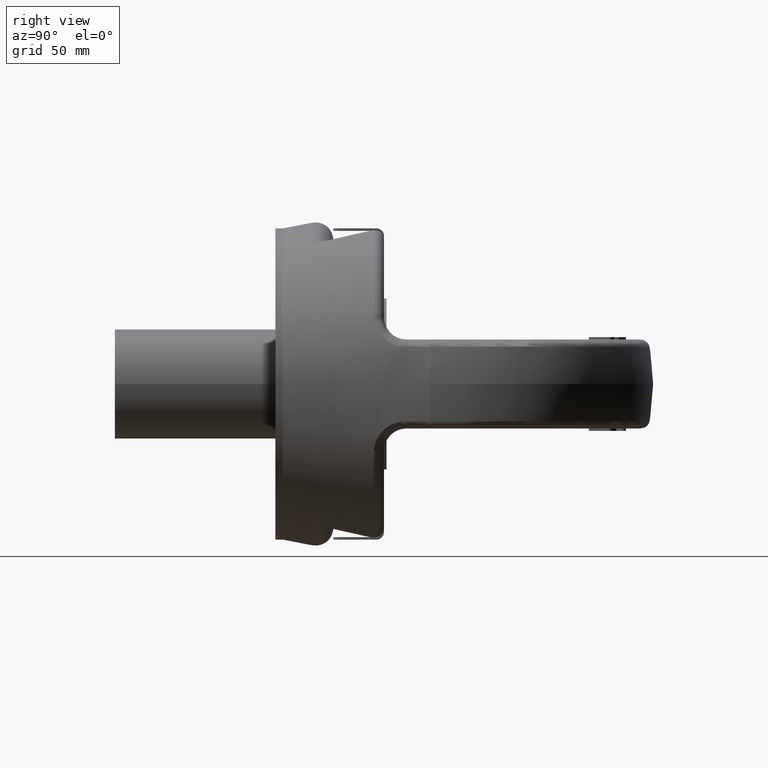
[diagram: clean part render]
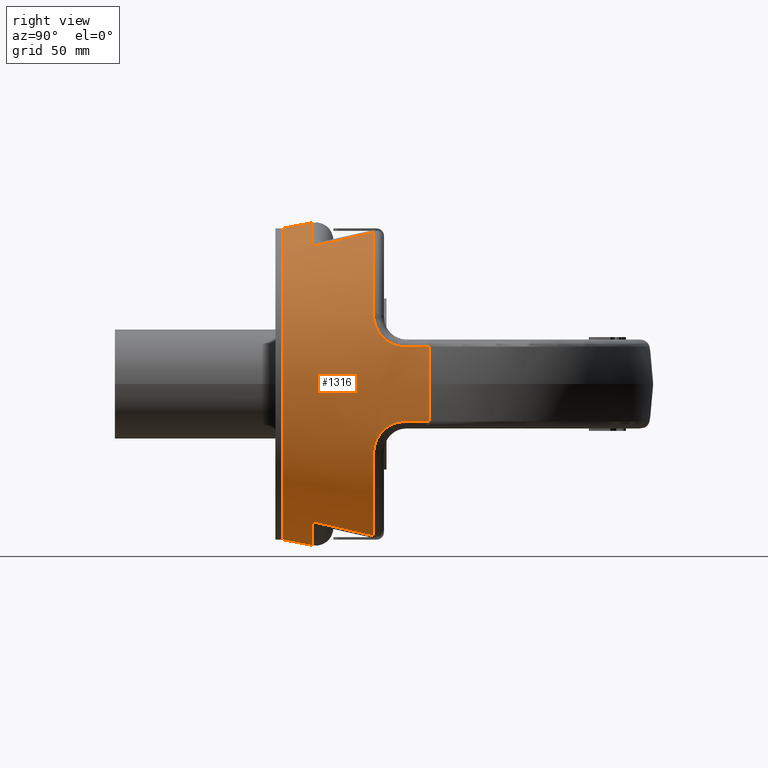
[diagram: same view with one face highlighted and labeled with its STEP entity id]
A machine part, right view. The second image highlights one B-rep face of the part: STEP entity #1316.
In plain terms, the highlighted conical surface has half-angle 11.036 deg.
Its self-contained STEP definition (entity closure, byte-faithful):
#1090=CONICAL_SURFACE('',#5143,62.4149258715599,11.0355728840345);
#1316=ADVANCED_FACE('',(#1767,#1768),#1090,.T.);
#1676=CIRCLE('',#5134,74.5946481153566);
#1677=CIRCLE('',#5135,70.159531379421);
#1678=CIRCLE('',#5136,65.3250431258165);
#1679=CIRCLE('',#5137,70.159531379421);
#1680=CIRCLE('',#5138,74.5946481153566);
#1681=CIRCLE('',#5139,70.159531379421);
#1682=CIRCLE('',#5140,65.3250431258165);
#1683=CIRCLE('',#5141,70.159531379421);
#1684=CIRCLE('',#5142,63.0000000000001);
#1767=FACE_BOUND('',#1828,.T.);
#1768=FACE_BOUND('',#1829,.T.);
#1828=EDGE_LOOP('',(#2810,#2811,#2812,#2813,#2814,#2815,#2816,#2817,#2818,
#2819,#2820,#2821,#2822,#2823,#2824,#2825,#2826,#2827,#2828,#2829));
#1829=EDGE_LOOP('',(#2830));
#2810=ORIENTED_EDGE('',*,*,#4372,.T.);
#2811=ORIENTED_EDGE('',*,*,#4373,.T.);
#2812=ORIENTED_EDGE('',*,*,#4374,.T.);
#2813=ORIENTED_EDGE('',*,*,#4375,.T.);
#2814=ORIENTED_EDGE('',*,*,#4376,.T.);
#2815=ORIENTED_EDGE('',*,*,#4377,.T.);
#2816=ORIENTED_EDGE('',*,*,#4378,.T.);
#2817=ORIENTED_EDGE('',*,*,#4379,.T.);
#2818=ORIENTED_EDGE('',*,*,#4380,.T.);
#2819=ORIENTED_EDGE('',*,*,#4381,.T.);
#2820=ORIENTED_EDGE('',*,*,#4382,.T.);
#2821=ORIENTED_EDGE('',*,*,#4383,.T.);
#2822=ORIENTED_EDGE('',*,*,#4384,.T.);
#2823=ORIENTED_EDGE('',*,*,#4385,.T.);
#2824=ORIENTED_EDGE('',*,*,#4386,.T.);
#2825=ORIENTED_EDGE('',*,*,#4387,.T.);
#2826=ORIENTED_EDGE('',*,*,#4388,.T.);
#2827=ORIENTED_EDGE('',*,*,#4389,.T.);
#2828=ORIENTED_EDGE('',*,*,#4390,.T.);
#2829=ORIENTED_EDGE('',*,*,#4391,.T.);
#2830=ORIENTED_EDGE('',*,*,#4392,.F.);
#3982=VERTEX_POINT('',#6756);
#3983=VERTEX_POINT('',#6757);
#3984=VERTEX_POINT('',#6765);
#3985=VERTEX_POINT('',#6772);
#3986=VERTEX_POINT('',#6774);
#3987=VERTEX_POINT('',#6782);
#3988=VERTEX_POINT('',#6784);
#3989=VERTEX_POINT('',#6792);
#3990=VERTEX_POINT('',#6794);
#3991=VERTEX_POINT('',#6801);
#3992=VERTEX_POINT('',#6809);
#3993=VERTEX_POINT('',#6811);
#3994=VERTEX_POINT('',#6819);
#3995=VERTEX_POINT('',#6826);
#3996=VERTEX_POINT('',#6828);
#3997=VERTEX_POINT('',#6836);
#3998=VERTEX_POINT('',#6838);
#3999=VERTEX_POINT('',#6846);
#4000=VERTEX_POINT('',#6848);
#4001=VERTEX_POINT('',#6855);
#4002=VERTEX_POINT('',#6864);
#4372=EDGE_CURVE('',#3982,#3983,#1676,.T.);
#4373=EDGE_CURVE('',#3983,#3984,#4887,.T.);
#4374=EDGE_CURVE('',#3984,#3985,#4888,.T.);
#4375=EDGE_CURVE('',#3985,#3986,#1677,.T.);
#4376=EDGE_CURVE('',#3986,#3987,#4889,.T.);
#4377=EDGE_CURVE('',#3987,#3988,#1678,.T.);
#4378=EDGE_CURVE('',#3988,#3989,#4890,.T.);
#4379=EDGE_CURVE('',#3989,#3990,#1679,.T.);
#4380=EDGE_CURVE('',#3990,#3991,#4891,.T.);
#4381=EDGE_CURVE('',#3991,#3992,#4892,.T.);
#4382=EDGE_CURVE('',#3992,#3993,#1680,.T.);
#4383=EDGE_CURVE('',#3993,#3994,#4893,.T.);
#4384=EDGE_CURVE('',#3994,#3995,#4894,.T.);
#4385=EDGE_CURVE('',#3995,#3996,#1681,.T.);
#4386=EDGE_CURVE('',#3996,#3997,#4895,.T.);
#4387=EDGE_CURVE('',#3997,#3998,#1682,.T.);
#4388=EDGE_CURVE('',#3998,#3999,#4896,.T.);
#4389=EDGE_CURVE('',#3999,#4000,#1683,.T.);
#4390=EDGE_CURVE('',#4000,#4001,#4897,.T.);
#4391=EDGE_CURVE('',#4001,#3982,#4898,.T.);
#4392=EDGE_CURVE('',#4002,#4002,#1684,.T.);
#4887=B_SPLINE_CURVE_WITH_KNOTS('',3,(#6758,#6759,#6760,#6761,#6762,#6763,
#6764),.UNSPECIFIED.,.F.,.F.,(4,3,4),(0.,0.696218903154274,1.),
 .UNSPECIFIED.);
#4888=B_SPLINE_CURVE_WITH_KNOTS('',3,(#6766,#6767,#6768,#6769,#6770,#6771),
 .UNSPECIFIED.,.F.,.F.,(4,2,4),(0.,0.5,1.),.UNSPECIFIED.);
#4889=B_SPLINE_CURVE_WITH_KNOTS('',3,(#6775,#6776,#6777,#6778,#6779,#6780,
#6781),.UNSPECIFIED.,.F.,.F.,(4,3,4),(0.,0.277118209499198,1.),
 .UNSPECIFIED.);
#4890=B_SPLINE_CURVE_WITH_KNOTS('',3,(#6785,#6786,#6787,#6788,#6789,#6790,
#6791),.UNSPECIFIED.,.F.,.F.,(4,3,4),(0.,0.722881790500798,1.),
 .UNSPECIFIED.);
#4891=B_SPLINE_CURVE_WITH_KNOTS('',3,(#6795,#6796,#6797,#6798,#6799,#6800),
 .UNSPECIFIED.,.F.,.F.,(4,2,4),(0.,0.5,1.),.UNSPECIFIED.);
#4892=B_SPLINE_CURVE_WITH_KNOTS('',3,(#6802,#6803,#6804,#6805,#6806,#6807,
#6808),.UNSPECIFIED.,.F.,.F.,(4,3,4),(0.,0.696218903588107,1.),
 .UNSPECIFIED.);
#4893=B_SPLINE_CURVE_WITH_KNOTS('',3,(#6812,#6813,#6814,#6815,#6816,#6817,
#6818),.UNSPECIFIED.,.F.,.F.,(4,3,4),(0.,0.696218903154274,1.),
 .UNSPECIFIED.);
#4894=B_SPLINE_CURVE_WITH_KNOTS('',3,(#6820,#6821,#6822,#6823,#6824,#6825),
 .UNSPECIFIED.,.F.,.F.,(4,2,4),(0.,0.5,1.),.UNSPECIFIED.);
#4895=B_SPLINE_CURVE_WITH_KNOTS('',3,(#6829,#6830,#6831,#6832,#6833,#6834,
#6835),.UNSPECIFIED.,.F.,.F.,(4,3,4),(0.,0.277118209499198,1.),
 .UNSPECIFIED.);
#4896=B_SPLINE_CURVE_WITH_KNOTS('',3,(#6839,#6840,#6841,#6842,#6843,#6844,
#6845),.UNSPECIFIED.,.F.,.F.,(4,3,4),(0.,0.722881790500798,1.),
 .UNSPECIFIED.);
#4897=B_SPLINE_CURVE_WITH_KNOTS('',3,(#6849,#6850,#6851,#6852,#6853,#6854),
 .UNSPECIFIED.,.F.,.F.,(4,2,4),(0.,0.5,1.),.UNSPECIFIED.);
#4898=B_SPLINE_CURVE_WITH_KNOTS('',3,(#6856,#6857,#6858,#6859,#6860,#6861,
#6862),.UNSPECIFIED.,.F.,.F.,(4,3,4),(0.,0.696218903588107,1.),
 .UNSPECIFIED.);
#5134=AXIS2_PLACEMENT_3D('',#6755,#5481,#5482);
#5135=AXIS2_PLACEMENT_3D('',#6773,#5483,#5484);
#5136=AXIS2_PLACEMENT_3D('',#6783,#5485,#5486);
#5137=AXIS2_PLACEMENT_3D('',#6793,#5487,#5488);
#5138=AXIS2_PLACEMENT_3D('',#6810,#5489,#5490);
#5139=AXIS2_PLACEMENT_3D('',#6827,#5491,#5492);
#5140=AXIS2_PLACEMENT_3D('',#6837,#5493,#5494);
#5141=AXIS2_PLACEMENT_3D('',#6847,#5495,#5496);
#5142=AXIS2_PLACEMENT_3D('',#6863,#5497,#5498);
#5143=AXIS2_PLACEMENT_3D('',#6865,#5499,#5500);
#5481=DIRECTION('',(-8.32702619952307E-16,-1.,0.));
#5482=DIRECTION('',(1.,-8.37192033382736E-16,0.));
#5483=DIRECTION('',(-1.25106507477956E-15,-1.,-2.93113378658471E-30));
#5484=DIRECTION('',(-1.,1.28572154028459E-15,-2.34291072916505E-15));
#5485=DIRECTION('',(-1.49384152936647E-16,-1.,-3.49993734682502E-31));
#5486=DIRECTION('',(-1.,1.59331557360235E-16,-2.34291072916505E-15));
#5487=DIRECTION('',(1.25106507477956E-15,-1.,2.93113378658471E-30));
#5488=DIRECTION('',(-1.,-1.28572154028459E-15,-2.34291072916505E-15));
#5489=DIRECTION('',(-8.32702619952307E-16,-1.,0.));
#5490=DIRECTION('',(1.,-8.37192033382736E-16,0.));
#5491=DIRECTION('',(1.25106507477956E-15,-1.,0.));
#5492=DIRECTION('',(1.,1.28572154028459E-15,0.));
#5493=DIRECTION('',(1.49384152936647E-16,-1.,0.));
#5494=DIRECTION('',(1.,1.59331557360235E-16,0.));
#5495=DIRECTION('',(-1.25106507477956E-15,-1.,0.));
#5496=DIRECTION('',(1.,-1.28572154028459E-15,0.));
#5497=DIRECTION('',(0.,-1.,0.));
#5498=DIRECTION('',(0.,0.,1.));
#5499=DIRECTION('',(8.32702619952307E-16,1.,0.));
#5500=DIRECTION('',(-1.,6.4688350520035E-16,0.));
#6755=CARTESIAN_POINT('',(-7.53993899390729E-14,62.4522004225333,0.));
#6756=CARTESIAN_POINT('',(-73.0470218649802,62.4522004225334,15.1160220994476));
#6757=CARTESIAN_POINT('',(-73.04702186498,62.4522004225333,-15.1160220994477));
#6758=CARTESIAN_POINT('',(-73.04702186498,62.4522004225333,-15.1160220994477));
#6759=CARTESIAN_POINT('',(-72.5773323571171,60.0986137057358,-15.1206471195753));
#6760=CARTESIAN_POINT('',(-72.1074288123977,57.7450698653309,-15.1253616441647));
#6761=CARTESIAN_POINT('',(-71.6372972063869,55.3915717878939,-15.1301710748141));
#6762=CARTESIAN_POINT('',(-71.4321647474894,54.3646702959232,-15.1322695730269));
#6763=CARTESIAN_POINT('',(-71.2269888534885,53.3377775162468,-15.1343861452101));
#6764=CARTESIAN_POINT('',(-71.0217682856431,52.3108937042253,-15.136521266048));
#6765=CARTESIAN_POINT('',(-71.0217682856431,52.3108937042253,-15.136521266048));
#6766=CARTESIAN_POINT('',(-71.0217682856431,52.3108937042253,-15.136521266048));
#6767=CARTESIAN_POINT('',(-70.3113527915392,48.7561127270364,-15.1439124497922));
#6768=CARTESIAN_POINT('',(-69.3287708213186,45.4283966235626,-16.7696587750072));
#6769=CARTESIAN_POINT('',(-66.9693945275278,40.8814377147048,-21.8444098292553));
#6770=CARTESIAN_POINT('',(-65.6049138920833,39.7108937042253,-25.127990593447));
#6771=CARTESIAN_POINT('',(-64.1403640092698,39.7108937042253,-28.4319107366761));
#6772=CARTESIAN_POINT('',(-64.1403640092698,39.7108937042253,-28.4319107366761));
#6773=CARTESIAN_POINT('',(9.43361356245471E-14,39.7108937042252,2.21021144302721E-28));
#6774=CARTESIAN_POINT('',(-33.8328326084271,39.7108937042252,-61.4629911497163));
#6775=CARTESIAN_POINT('',(-33.8328326084271,39.7108937042252,-61.4629911497163));
#6776=CARTESIAN_POINT('',(-33.8569733561831,37.4191727761368,-60.9395215762751));
#6777=CARTESIAN_POINT('',(-33.8816220479038,35.1279132817464,-60.414050238273));
#6778=CARTESIAN_POINT('',(-33.9068116186157,32.8371630093534,-59.8863982153276));
#6779=CARTESIAN_POINT('',(-33.9725201495149,26.8616012668625,-58.509985744855));
#6780=CARTESIAN_POINT('',(-34.0418989200798,20.8894462217521,-57.1188192283477));
#6781=CARTESIAN_POINT('',(-34.1156276807715,14.9217874084505,-55.7089329222591));
#6782=CARTESIAN_POINT('',(-34.1156276807715,14.9217874084505,-55.7089329222591));
#6783=CARTESIAN_POINT('',(1.14978089383315E-13,14.9217874084505,2.69383399235067E-28));
#6784=CARTESIAN_POINT('',(34.1156276807717,14.9217874084505,-55.7089329222591));
#6785=CARTESIAN_POINT('',(34.1156276807717,14.9217874084505,-55.7089329222591));
#6786=CARTESIAN_POINT('',(34.04189892008,20.8894462217521,-57.1188192283476));
#6787=CARTESIAN_POINT('',(33.9725201495151,26.8616012668625,-58.509985744855));
#6788=CARTESIAN_POINT('',(33.906811618616,32.8371630093533,-59.8863982153276));
#6789=CARTESIAN_POINT('',(33.8816220479041,35.1279132817464,-60.414050238273));
#6790=CARTESIAN_POINT('',(33.8569733561834,37.4191727761368,-60.9395215762751));
#6791=CARTESIAN_POINT('',(33.8328326084273,39.7108937042253,-61.4629911497163));
#6792=CARTESIAN_POINT('',(33.8328326084273,39.7108937042253,-61.4629911497163));
#6793=CARTESIAN_POINT('',(9.43361356245472E-14,39.7108937042252,2.21021144302721E-28));
#6794=CARTESIAN_POINT('',(64.1403640092701,39.7108937042253,-28.4319107366758));
#6795=CARTESIAN_POINT('',(64.1403640092701,39.7108937042253,-28.4319107366758));
#6796=CARTESIAN_POINT('',(65.6037690047869,39.7108937042253,-25.1305733775811));
#6797=CARTESIAN_POINT('',(66.9848092787425,40.9082737412596,-21.8104018528848));
#6798=CARTESIAN_POINT('',(69.3206138894666,45.4155567046367,-16.7880586562449));
#6799=CARTESIAN_POINT('',(70.3121264693099,48.7599840601422,-15.1439044004255));
#6800=CARTESIAN_POINT('',(71.0217682856433,52.3108937042253,-15.1365212660477));
#6801=CARTESIAN_POINT('',(71.0217682856433,52.3108937042253,-15.1365212660477));
#6802=CARTESIAN_POINT('',(71.0217682856433,52.3108937042253,-15.1365212660477));
#6803=CARTESIAN_POINT('',(71.4921018238644,54.6643512631867,-15.1316279020503));
#6804=CARTESIAN_POINT('',(71.9622007967054,57.0178559145269,-15.1268319359498));
#6805=CARTESIAN_POINT('',(72.4320797613354,59.3714046591928,-15.1221277782781));
#6806=CARTESIAN_POINT('',(72.6371019848698,60.3983282568643,-15.120075213813));
#6807=CARTESIAN_POINT('',(72.8420823069853,61.4252602559587,-15.1180401338399));
#6808=CARTESIAN_POINT('',(73.0470218649802,62.4522004225334,-15.1160220994474));
#6809=CARTESIAN_POINT('',(73.0470218649802,62.4522004225334,-15.1160220994474));
#6810=CARTESIAN_POINT('',(-7.53993899390729E-14,62.4522004225333,0.));
#6811=CARTESIAN_POINT('',(73.0470218649801,62.4522004225333,15.1160220994475));
#6812=CARTESIAN_POINT('',(73.0470218649801,62.4522004225333,15.1160220994475));
#6813=CARTESIAN_POINT('',(72.5773323571171,60.0986137057358,15.1206471195752));
#6814=CARTESIAN_POINT('',(72.1074288123978,57.7450698653309,15.1253616441645));
#6815=CARTESIAN_POINT('',(71.6372972063869,55.3915717878939,15.1301710748139));
#6816=CARTESIAN_POINT('',(71.4321647474894,54.3646702959232,15.1322695730267));
#6817=CARTESIAN_POINT('',(71.2269888534885,53.3377775162468,15.13438614521));
#6818=CARTESIAN_POINT('',(71.0217682856432,52.3108937042253,15.1365212660479));
#6819=CARTESIAN_POINT('',(71.0217682856432,52.3108937042253,15.1365212660479));
#6820=CARTESIAN_POINT('',(71.0217682856432,52.3108937042253,15.1365212660479));
#6821=CARTESIAN_POINT('',(70.3113527915392,48.7561127270364,15.143912449792));
#6822=CARTESIAN_POINT('',(69.3287708213187,45.4283966235626,16.7696587750071));
#6823=CARTESIAN_POINT('',(66.9693945275278,40.8814377147048,21.8444098292551));
#6824=CARTESIAN_POINT('',(65.6049138920834,39.7108937042253,25.1279905934469));
#6825=CARTESIAN_POINT('',(64.1403640092698,39.7108937042253,28.431910736676));
#6826=CARTESIAN_POINT('',(64.1403640092698,39.7108937042253,28.431910736676));
#6827=CARTESIAN_POINT('',(-9.43361356245471E-14,39.7108937042252,0.));
#6828=CARTESIAN_POINT('',(33.8328326084272,39.7108937042252,61.4629911497163));
#6829=CARTESIAN_POINT('',(33.8328326084272,39.7108937042252,61.4629911497163));
#6830=CARTESIAN_POINT('',(33.8569733561833,37.4191727761368,60.939521576275));
#6831=CARTESIAN_POINT('',(33.881622047904,35.1279132817464,60.4140502382729));
#6832=CARTESIAN_POINT('',(33.9068116186159,32.8371630093534,59.8863982153276));
#6833=CARTESIAN_POINT('',(33.972520149515,26.8616012668625,58.5099857448549));
#6834=CARTESIAN_POINT('',(34.0418989200799,20.8894462217521,57.1188192283476));
#6835=CARTESIAN_POINT('',(34.1156276807716,14.9217874084505,55.708932922259));
#6836=CARTESIAN_POINT('',(34.1156276807716,14.9217874084505,55.708932922259));
#6837=CARTESIAN_POINT('',(-1.14978089383315E-13,14.9217874084505,0.));
#6838=CARTESIAN_POINT('',(-34.1156276807716,14.9217874084505,55.7089329222591));
#6839=CARTESIAN_POINT('',(-34.1156276807716,14.9217874084505,55.7089329222591));
#6840=CARTESIAN_POINT('',(-34.0418989200799,20.8894462217521,57.1188192283477));
#6841=CARTESIAN_POINT('',(-33.972520149515,26.8616012668625,58.5099857448551));
#6842=CARTESIAN_POINT('',(-33.9068116186158,32.8371630093533,59.8863982153277));
#6843=CARTESIAN_POINT('',(-33.8816220479039,35.1279132817464,60.414050238273));
#6844=CARTESIAN_POINT('',(-33.8569733561833,37.4191727761368,60.9395215762751));
#6845=CARTESIAN_POINT('',(-33.8328326084272,39.7108937042253,61.4629911497164));
#6846=CARTESIAN_POINT('',(-33.8328326084272,39.7108937042253,61.4629911497164));
#6847=CARTESIAN_POINT('',(-9.43361356245472E-14,39.7108937042252,0.));
#6848=CARTESIAN_POINT('',(-64.14036400927,39.7108937042253,28.431910736676));
#6849=CARTESIAN_POINT('',(-64.14036400927,39.7108937042253,28.431910736676));
#6850=CARTESIAN_POINT('',(-65.6037690047869,39.7108937042253,25.1305733775813));
#6851=CARTESIAN_POINT('',(-66.9848092787425,40.9082737412596,21.8104018528849));
#6852=CARTESIAN_POINT('',(-69.3206138894666,45.4155567046367,16.7880586562451));
#6853=CARTESIAN_POINT('',(-70.3121264693099,48.7599840601422,15.1439044004257));
#6854=CARTESIAN_POINT('',(-71.0217682856433,52.3108937042253,15.1365212660479));
#6855=CARTESIAN_POINT('',(-71.0217682856433,52.3108937042253,15.1365212660479));
#6856=CARTESIAN_POINT('',(-71.0217682856433,52.3108937042253,15.1365212660479));
#6857=CARTESIAN_POINT('',(-71.4921018238644,54.6643512631867,15.1316279020505));
#6858=CARTESIAN_POINT('',(-71.9622007967054,57.0178559145269,15.1268319359499));
#6859=CARTESIAN_POINT('',(-72.4320797613353,59.3714046591928,15.1221277782783));
#6860=CARTESIAN_POINT('',(-72.6371019848697,60.3983282568643,15.1200752138132));
#6861=CARTESIAN_POINT('',(-72.8420823069853,61.4252602559587,15.1180401338401));
#6862=CARTESIAN_POINT('',(-73.0470218649802,62.4522004225334,15.1160220994476));
#6863=CARTESIAN_POINT('',(-1.27403500852703E-13,3.,1.27291558118458E-14));
#6864=CARTESIAN_POINT('',(-1.27403500852703E-13,3.,63.0000000000001));
#6865=CARTESIAN_POINT('',(-1.27403500852703E-13,5.55111512312578E-14,0.));